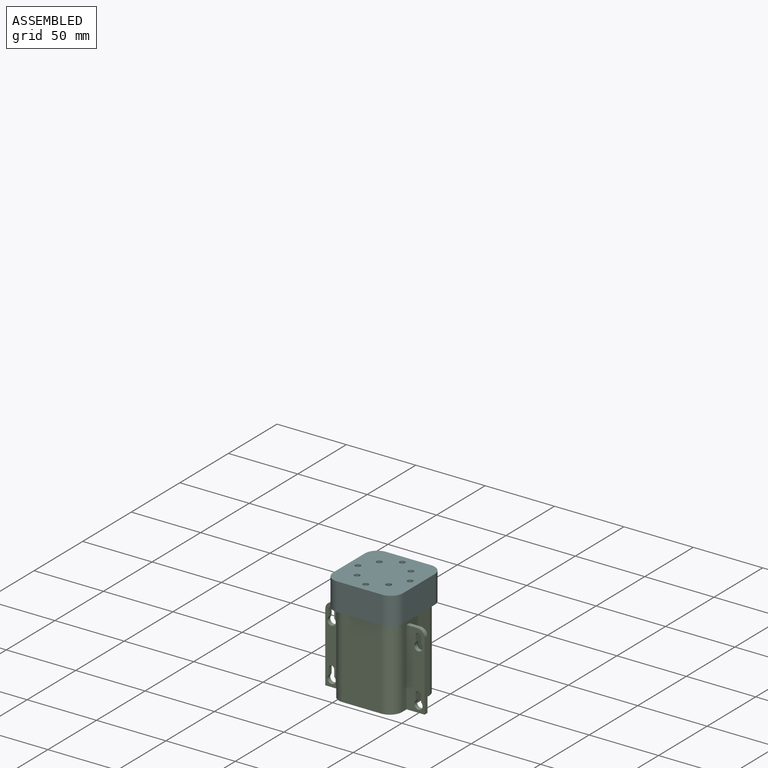
[diagram: assembled view]
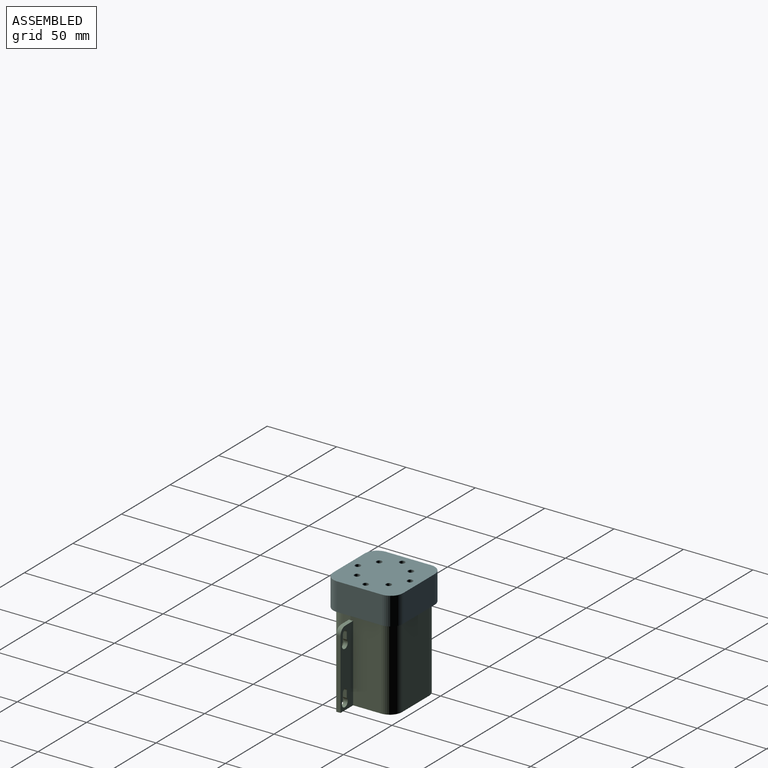
[diagram: assembled view, second angle]
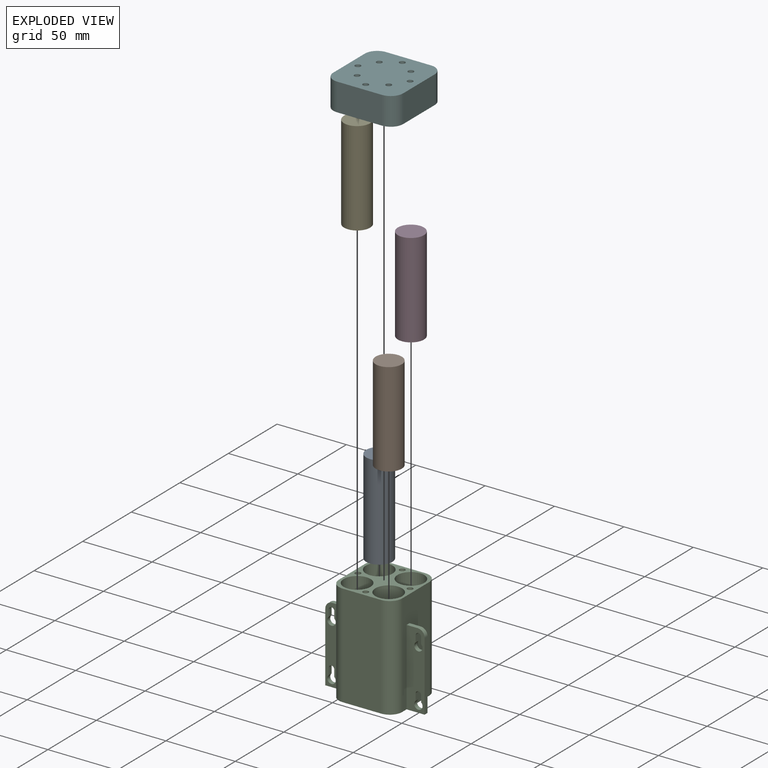
[diagram: exploded view]
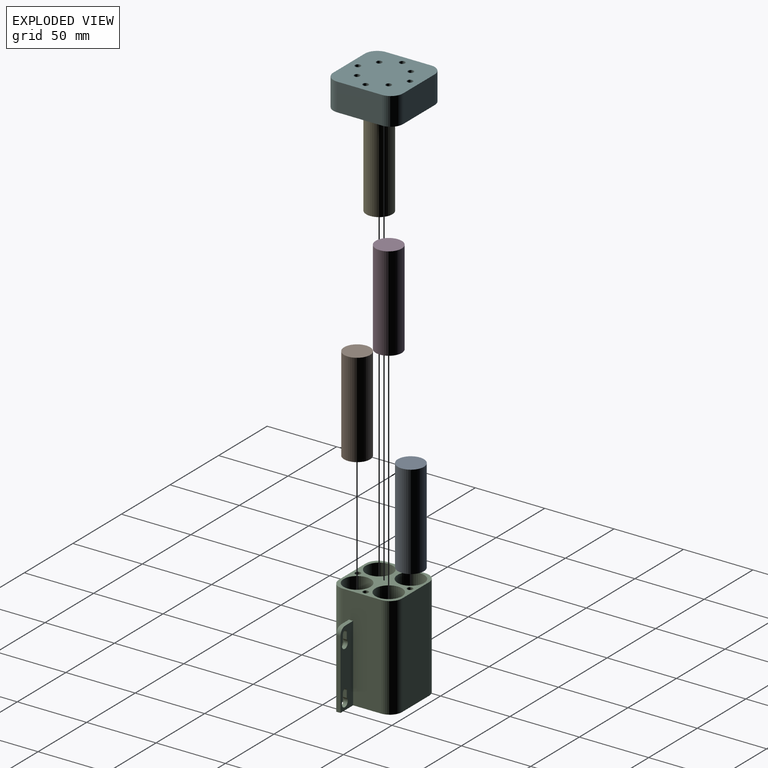
[diagram: exploded view, second angle]
ASSEMBLY  parts=6 mates=10
PART A: 3 faces, bbox 18.8x18.8x68 mm
  f0: cylinder r=9.4mm len=68mm, axis (0,0,-1), area 4016.2mm2, adj f1,f2
  f1: plane 18.8x18.8mm, normal (0,0,1), area 277.6mm2, adj f0
  f2: plane 18.8x18.8mm, normal (0,0,-1), area 277.6mm2, adj f0
PART B: same geometry as A
PART C: 64 faces, bbox 71.6x45.6x74 mm
  f0: plane 55x13mm, normal (0,1,0), area 606.6mm2, adj f3,f21,f40,f41,f54,f55,f56,f57
  f1: plane 55x13mm, normal (0,-1,0), area 606.6mm2, adj f3,f21,f40,f41,f54,f55,f56,f57
  f2: plane 74x27.6mm, normal (-1,0,0), area 1877.4mm2, adj f12,f13,f16,f21,f42,f43,f44
  f3: plane 74x27.6mm, normal (1,0,0), area 1877.4mm2, adj f0,f1,f12,f14,f15,f21,f41
  f4: cylinder r=9.65mm len=71mm, axis (0,0,-1), area 3966.3mm2, adj f7,f12,f18,f34,f35,f36
  f5: cylinder r=9.65mm len=71mm, axis (0,0,-1), area 3966.3mm2, adj f6,f12,f17,f37,f38,f39
  f6: plane 19.3x11.75mm, normal (0,0,1), area 173.9mm2, adj f5,f25,f38
  f7: plane 19.3x11.75mm, normal (0,0,1), area 173.9mm2, adj f4,f24,f35
  f8: plane 74x27.6mm, normal (0,-1,0), area 2042.4mm2, adj f12,f13,f14,f21
  f9: cylinder r=9.65mm len=71mm, axis (0,0,-1), area 4304.9mm2, adj f12,f19
  f10: cylinder r=9.65mm len=71mm, axis (0,0,-1), area 4304.9mm2, adj f12,f20
  f11: plane 74x27.6mm, normal (0,1,0), area 2042.4mm2, adj f12,f15,f16,f21
  f12: plane 45.6x45.6mm, normal (0,0,1), area 789.4mm2, adj f2,f3,f4,f5,f8,f9,f10,f11
  f13: cylinder r=9mm len=74mm, axis (0,0,1), area 1046.2mm2, adj f2,f8,f12,f21
  f14: cylinder r=9mm len=74mm, axis (0,0,-1), area 1046.2mm2, adj f3,f8,f12,f21
  f15: cylinder r=9mm len=74mm, axis (0,0,1), area 1046.2mm2, adj f3,f11,f12,f21
  f16: cylinder r=9mm len=74mm, axis (0,0,-1), area 1046.2mm2, adj f2,f11,f12,f21
  f17: plane 16.38x4.55mm, normal (0,0,1), area 52.6mm2, adj f5,f37
  f18: plane 16.38x4.55mm, normal (0,0,1), area 52.6mm2, adj f4,f34
  f19: plane 19.3x19.3mm, normal (0,0,1), area 280mm2, adj f9,f23
  f20: plane 19.3x19.3mm, normal (0,0,1), area 280mm2, adj f10,f22
  f21: plane 71.6x45.6mm, normal (0,0,-1), area 2037.6mm2, adj f0,f1,f2,f3,f8,f11,f13,f14
  f22: cylinder r=2mm len=4mm, axis (0,0,1), area 37.7mm2, adj f20,f21
  f23: cylinder r=2mm len=4mm, axis (0,0,1), area 37.7mm2, adj f19,f21
  f24: cylinder r=2mm len=4mm, axis (0,0,1), area 37.7mm2, adj f7,f21
  f25: cylinder r=2mm len=4mm, axis (0,0,1), area 37.7mm2, adj f6,f21
  f26: cylinder r=2mm len=18mm, axis (0,0,1), area 226.2mm2, adj f12,f27
  f27: plane 4x4mm, normal (0,0,1), area 12.6mm2, adj f26
  f28: cylinder r=2mm len=18mm, axis (0,0,1), area 226.2mm2, adj f12,f29
  f29: plane 4x4mm, normal (0,0,1), area 12.6mm2, adj f28
  f30: cylinder r=2mm len=18mm, axis (0,0,1), area 226.2mm2, adj f12,f31
  f31: plane 4x4mm, normal (0,0,1), area 12.6mm2, adj f30
  f32: cylinder r=2mm len=18mm, axis (0,0,1), area 226.2mm2, adj f12,f33
  f33: plane 4x4mm, normal (0,0,1), area 12.6mm2, adj f32
  f34: plane 52x16.38mm, normal (0,1,0), area 852mm2, adj f4,f18,f36
  f35: plane 52x18.84mm, normal (0,-1,0), area 979.5mm2, adj f4,f7,f36
  f36: plane 18.84x3mm, normal (0,0,1), area 53.4mm2, adj f4,f34,f35
  f37: plane 52x16.38mm, normal (0,1,0), area 852mm2, adj f5,f17,f39
  f38: plane 52x18.84mm, normal (0,-1,0), area 979.5mm2, adj f5,f6,f39
  f39: plane 18.84x3mm, normal (0,0,1), area 53.4mm2, adj f5,f37,f38
  f40: plane 50x3mm, normal (1,0,0), area 150mm2, adj f0,f1,f21,f63
  f41: plane 8x3mm, normal (0,0,1), area 24mm2, adj f0,f1,f3,f63
  f42: plane 8x3mm, normal (0,0,1), area 24mm2, adj f2,f43,f44,f62
  f43: plane 55x13mm, normal (0,-1,0), area 606.6mm2, adj f2,f21,f42,f45,f46,f47,f48,f49
  f44: plane 55x13mm, normal (0,1,0), area 606.6mm2, adj f2,f21,f42,f45,f46,f47,f48,f49
  f45: plane 50x3mm, normal (-1,0,0), area 150mm2, adj f21,f43,f44,f62
  f46: cylinder r=2mm len=4mm, axis (0,-1,0), area 18.8mm2, adj f43,f44,f47,f49
  f47: plane 4.76x3mm, normal (1,0,0), area 14.3mm2, adj f43,f44,f46,f48
  f48: cylinder r=3mm len=6mm, axis (0,-1,0), area 43.4mm2, adj f43,f44,f47,f49
  f49: plane 4.76x3mm, normal (-1,0,0), area 14.3mm2, adj f43,f44,f46,f48
  f50: cylinder r=2mm len=4mm, axis (0,-1,0), area 18.8mm2, adj f43,f44,f51,f53
  f51: plane 4.76x3mm, normal (1,0,0), area 14.3mm2, adj f43,f44,f50,f52
  f52: cylinder r=3mm len=6mm, axis (0,-1,0), area 43.4mm2, adj f43,f44,f51,f53
  f53: plane 4.76x3mm, normal (-1,0,0), area 14.3mm2, adj f43,f44,f50,f52
  f54: cylinder r=2mm len=4mm, axis (0,-1,0), area 18.8mm2, adj f0,f1,f55,f57
  f55: plane 4.76x3mm, normal (1,0,0), area 14.3mm2, adj f0,f1,f54,f56
  f56: cylinder r=3mm len=6mm, axis (0,-1,0), area 43.4mm2, adj f0,f1,f55,f57
  f57: plane 4.76x3mm, normal (-1,0,0), area 14.3mm2, adj f0,f1,f54,f56
  f58: cylinder r=2mm len=4mm, axis (0,-1,0), area 18.8mm2, adj f0,f1,f59,f61
  f59: plane 4.76x3mm, normal (1,0,0), area 14.3mm2, adj f0,f1,f58,f60
  f60: cylinder r=3mm len=6mm, axis (0,-1,0), area 43.4mm2, adj f0,f1,f59,f61
  f61: plane 4.76x3mm, normal (-1,0,0), area 14.3mm2, adj f0,f1,f58,f60
  f62: cylinder r=5mm len=5mm, axis (0,-1,0), area 23.6mm2, adj f42,f43,f44,f45
  f63: cylinder r=5mm len=5mm, axis (0,1,0), area 23.6mm2, adj f0,f1,f40,f41
PART D: same geometry as A
PART E: same geometry as A
PART F: 27 faces, bbox 50.4x50.4x20 mm
  f0: cylinder r=2mm len=5mm, axis (0,0,-1), area 62.8mm2, adj f9,f14
  f1: cylinder r=2mm len=5mm, axis (0,0,-1), area 62.8mm2, adj f9,f14
  f2: cylinder r=2mm len=5mm, axis (0,0,-1), area 62.8mm2, adj f9,f14
  f3: cylinder r=2mm len=5mm, axis (0,0,-1), area 62.8mm2, adj f9,f14
  f4: plane 50.4x50.4mm, normal (0,0,1), area 387.2mm2, adj f5,f6,f7,f8,f10,f11,f12,f13
  f5: plane 32.4x20mm, normal (-1,0,0), area 648mm2, adj f4,f9,f19,f22
  f6: plane 32.4x20mm, normal (0,-1,0), area 648mm2, adj f4,f9,f19,f20
  f7: plane 32.4x20mm, normal (1,0,0), area 648mm2, adj f4,f9,f20,f21
  f8: plane 32.4x20mm, normal (0,1,0), area 648mm2, adj f4,f9,f21,f22
  f9: plane 50.4x50.4mm, normal (0,0,-1), area 2370.1mm2, adj f0,f1,f2,f3,f5,f6,f7,f8
  f10: plane 28.4x15mm, normal (1,0,0), area 426mm2, adj f4,f14,f15,f18
  f11: plane 28.4x15mm, normal (0,1,0), area 426mm2, adj f4,f14,f15,f16
  f12: plane 28.4x15mm, normal (-1,0,0), area 426mm2, adj f4,f14,f16,f17
  f13: plane 28.4x15mm, normal (0,-1,0), area 426mm2, adj f4,f14,f17,f18
  f14: plane 46.4x46.4mm, normal (0,0,1), area 1982.9mm2, adj f0,f1,f2,f3,f10,f11,f12,f13
  f15: cylinder r=9mm len=15mm, axis (0,0,1), area 212.1mm2, adj f4,f10,f11,f14
  f16: cylinder r=9mm len=15mm, axis (0,0,-1), area 212.1mm2, adj f4,f11,f12,f14
  f17: cylinder r=9mm len=15mm, axis (0,0,1), area 212.1mm2, adj f4,f12,f13,f14
  f18: cylinder r=9mm len=15mm, axis (0,0,-1), area 212.1mm2, adj f4,f10,f13,f14
  f19: cylinder r=9mm len=20mm, axis (0,0,1), area 282.7mm2, adj f4,f5,f6,f9
  f20: cylinder r=9mm len=20mm, axis (0,0,-1), area 282.7mm2, adj f4,f6,f7,f9
  f21: cylinder r=9mm len=20mm, axis (0,0,1), area 282.7mm2, adj f4,f7,f8,f9
  f22: cylinder r=9mm len=20mm, axis (0,0,-1), area 282.7mm2, adj f4,f5,f8,f9
  f23: cylinder r=2mm len=5mm, axis (0,0,-1), area 62.8mm2, adj f9,f14
  f24: cylinder r=2mm len=5mm, axis (0,0,-1), area 62.8mm2, adj f9,f14
  f25: cylinder r=2mm len=5mm, axis (0,0,-1), area 62.8mm2, adj f9,f14
  f26: cylinder r=2mm len=5mm, axis (0,0,-1), area 62.8mm2, adj f9,f14
PLACE A t=(9.2,35.1,3)mm
PLACE B t=(32,12.3,3)mm
PLACE C t=(-2.2,0.9,0)mm
PLACE D t=(32,35.1,3)mm
PLACE E t=(9.2,12.3,3)mm
PLACE F rot(axis=(0,1,0),180deg) t=(20.6,23.7,76)mm
MATE planar E.f0 <-> C.f12  axis (0,0,1) through (9.2,12.3,71)mm
MATE planar D.f0 <-> C.f12  axis (0,0,1) through (32,35.1,71)mm
MATE cylindrical E.f0 <-> C.f5  axis (0,0,1) through (9.2,12.3,71)mm
MATE cylindrical D.f0 <-> C.f9  axis (0,0,1) through (32,35.1,71)mm
MATE slider F.f14 <-> C.f12  axis (0,0,-1) through (20.6,23.7,71)mm
MATE cylindrical B.f0 <-> C.f4  axis (0,0,1) through (32,12.3,71)mm
MATE planar A.f0 <-> C.f12  axis (0,0,1) through (9.2,35.1,71)mm
MATE planar F.f14 <-> C.f12  axis (0,0,-1) through (20.6,23.7,71)mm
MATE cylindrical A.f0 <-> C.f10  axis (0,0,1) through (9.2,35.1,71)mm
MATE planar B.f0 <-> C.f12  axis (0,0,1) through (32,12.3,71)mm
